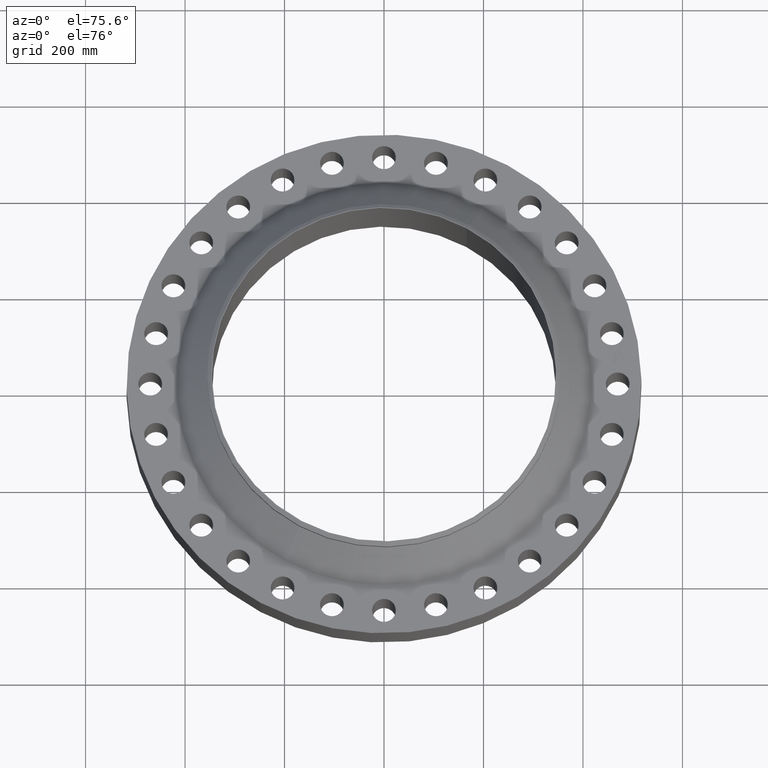
[diagram: clean part render]
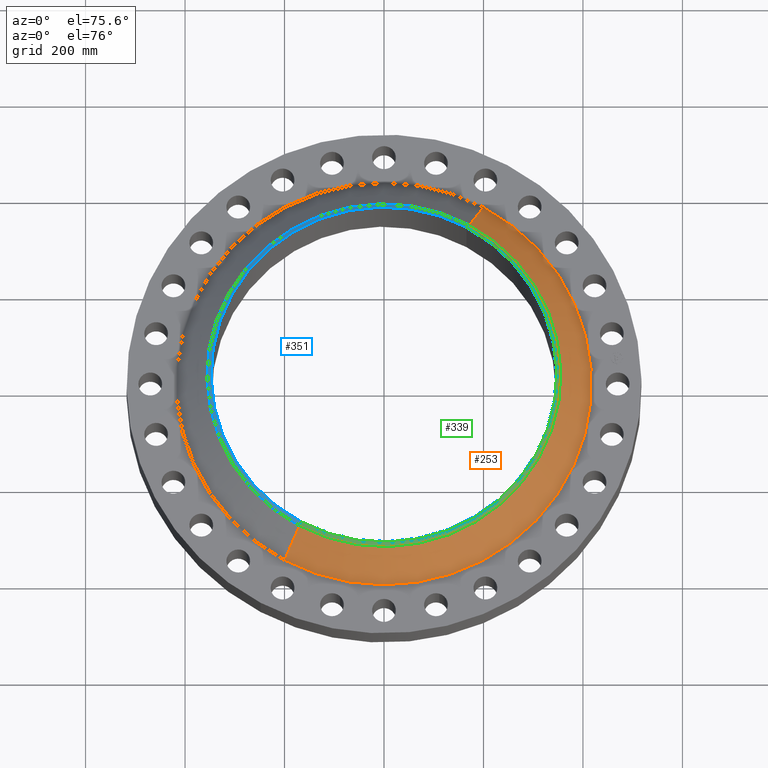
[diagram: same view with three faces highlighted in distinct colors, each labeled with its STEP entity id]
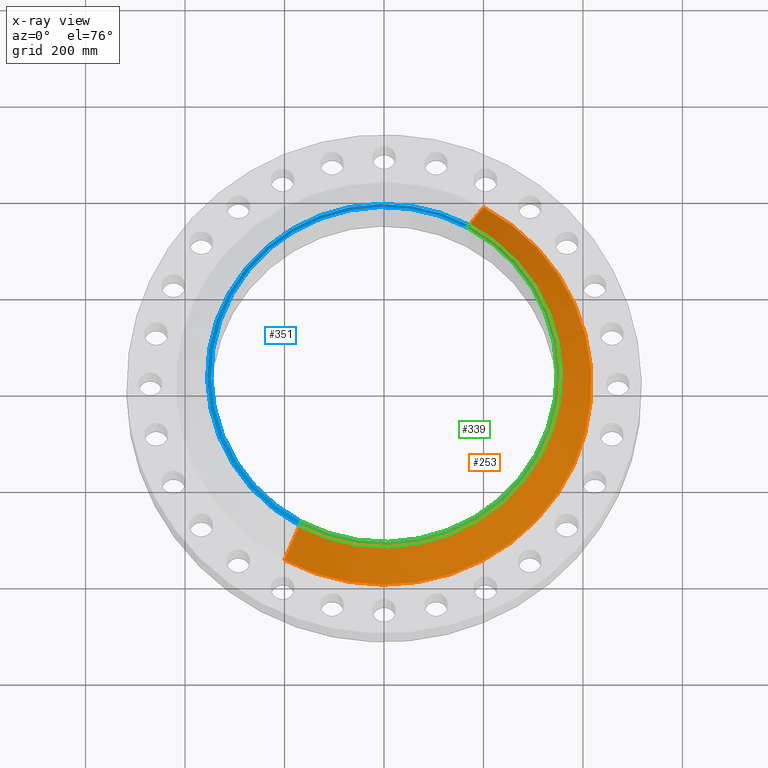
[diagram: x-ray of the same camera — body ghosted, the three highlighted faces saturated]
A machine part, auxiliary view with three faces highlighted in distinct colors.
The next image is the same camera in x-ray (body ghosted, the three faces saturated) — at least one of them is partly hidden behind the body in this view.
Their STEP definitions:

[orange] entity #253 — the highlighted conical surface has half-angle 44.726 deg.
#184=CARTESIAN_POINT('Vertex',(200.033842534,366.159492686,76.5573635073)) ;
#187=CARTESIAN_POINT('Axis2P3D Location',(0.,0.,76.5573635073)) ;
#191=CARTESIAN_POINT('Vertex',(-200.033842534,-366.159492686,76.5573635073)) ;
#223=CARTESIAN_POINT('Axis2P3D Location',(0.,0.,138.785342033)) ;
#228=CARTESIAN_POINT('Line Origine',(185.258782031,339.113925848,107.67135277)) ;
#232=CARTESIAN_POINT('Vertex',(170.483721528,312.068359009,138.785342033)) ;
#235=CARTESIAN_POINT('Axis2P3D Location',(0.,0.,138.785342033)) ;
#239=CARTESIAN_POINT('Vertex',(-170.483721528,-312.068359009,138.785342033)) ;
#242=CARTESIAN_POINT('Line Origine',(-185.258782031,-339.113925848,107.67135277)) ;
#188=DIRECTION('Axis2P3D Direction',(0.,0.,-1.)) ;
#224=DIRECTION('Axis2P3D Direction',(0.,0.,-1.)) ;
#225=DIRECTION('Axis2P3D XDirection',(0.479425538604,0.87758256189,0.)) ;
#229=DIRECTION('Vector Direction',(0.337382434249,0.617574403414,-0.710475157418)) ;
#236=DIRECTION('Axis2P3D Direction',(0.,0.,-1.)) ;
#243=DIRECTION('Vector Direction',(-0.337382434249,-0.617574403414,-0.710475157418)) ;
#189=AXIS2_PLACEMENT_3D('Circle Axis2P3D',#187,#188,$) ;
#226=AXIS2_PLACEMENT_3D('Cone Axis2P3D',#223,#224,#225) ;
#237=AXIS2_PLACEMENT_3D('Circle Axis2P3D',#235,#236,$) ;
#248=ORIENTED_EDGE('',*,*,#193,.F.) ;
#249=ORIENTED_EDGE('',*,*,#234,.T.) ;
#250=ORIENTED_EDGE('',*,*,#241,.T.) ;
#251=ORIENTED_EDGE('',*,*,#246,.F.) ;
#230=VECTOR('Line Direction',#229,1.) ;
#244=VECTOR('Line Direction',#243,1.) ;
#253=ADVANCED_FACE('PartBody',(#252),#227,.T.) ;
#190=CIRCLE('generated circle',#189,417.236518348) ;
#238=CIRCLE('generated circle',#237,355.600000001) ;
#227=CONICAL_SURFACE('Cone',#226,355.600000001,0.780623141506) ;
#193=EDGE_CURVE('',#185,#192,#190,.T.) ;
#234=EDGE_CURVE('',#185,#233,#231,.F.) ;
#241=EDGE_CURVE('',#233,#240,#238,.T.) ;
#246=EDGE_CURVE('',#192,#240,#245,.F.) ;
#247=EDGE_LOOP('',(#248,#249,#250,#251)) ;
#252=FACE_OUTER_BOUND('',#247,.T.) ;
#231=LINE('Line',#228,#230) ;
#245=LINE('Line',#242,#244) ;
#185=VERTEX_POINT('',#184) ;
#192=VERTEX_POINT('',#191) ;
#233=VERTEX_POINT('',#232) ;
#240=VERTEX_POINT('',#239) ;

[blue] entity #351 — the highlighted conical surface has half-angle 52.5 deg.
#275=CARTESIAN_POINT('Vertex',(-170.483721528,-312.068359009,144.785342033)) ;
#282=CARTESIAN_POINT('Vertex',(170.483721528,312.068359009,144.785342033)) ;
#297=CARTESIAN_POINT('Axis2P3D Location',(0.,0.,144.785342033)) ;
#309=CARTESIAN_POINT('Axis2P3D Location',(0.,0.,150.876000001)) ;
#314=CARTESIAN_POINT('Line Origine',(170.716513757,312.494482325,144.412754958)) ;
#318=CARTESIAN_POINT('Vertex',(166.678281316,305.102547424,150.876000001)) ;
#325=CARTESIAN_POINT('Vertex',(-166.678281316,-305.102547424,150.876000001)) ;
#328=CARTESIAN_POINT('Line Origine',(-170.716513757,-312.494482325,144.412754958)) ;
#340=CARTESIAN_POINT('Axis2P3D Location',(0.,0.,150.876000001)) ;
#298=DIRECTION('Axis2P3D Direction',(0.,0.,-1.)) ;
#310=DIRECTION('Axis2P3D Direction',(-0.,-0.,-1.)) ;
#311=DIRECTION('Axis2P3D XDirection',(0.479425538604,0.87758256189,0.)) ;
#315=DIRECTION('Vector Direction',(0.380353852473,0.696233056857,-0.608761429009)) ;
#329=DIRECTION('Vector Direction',(-0.380353852473,-0.696233056857,-0.608761429009)) ;
#341=DIRECTION('Axis2P3D Direction',(0.,-0.,-1.)) ;
#299=AXIS2_PLACEMENT_3D('Circle Axis2P3D',#297,#298,$) ;
#312=AXIS2_PLACEMENT_3D('Cone Axis2P3D',#309,#310,#311) ;
#342=AXIS2_PLACEMENT_3D('Circle Axis2P3D',#340,#341,$) ;
#346=ORIENTED_EDGE('',*,*,#332,.F.) ;
#347=ORIENTED_EDGE('',*,*,#344,.T.) ;
#348=ORIENTED_EDGE('',*,*,#320,.T.) ;
#349=ORIENTED_EDGE('',*,*,#301,.F.) ;
#316=VECTOR('Line Direction',#315,1.) ;
#330=VECTOR('Line Direction',#329,1.) ;
#351=ADVANCED_FACE('PartBody',(#350),#313,.T.) ;
#300=CIRCLE('generated circle',#299,355.600000001) ;
#343=CIRCLE('generated circle',#342,347.662500001) ;
#313=CONICAL_SURFACE('Cone',#312,347.662500001,0.916297857297) ;
#301=EDGE_CURVE('',#276,#283,#300,.T.) ;
#320=EDGE_CURVE('',#319,#283,#317,.T.) ;
#332=EDGE_CURVE('',#326,#276,#331,.T.) ;
#344=EDGE_CURVE('',#326,#319,#343,.T.) ;
#345=EDGE_LOOP('',(#346,#347,#348,#349)) ;
#350=FACE_OUTER_BOUND('',#345,.T.) ;
#317=LINE('Line',#314,#316) ;
#331=LINE('Line',#328,#330) ;
#276=VERTEX_POINT('',#275) ;
#283=VERTEX_POINT('',#282) ;
#319=VERTEX_POINT('',#318) ;
#326=VERTEX_POINT('',#325) ;

[green] entity #339 — the highlighted conical surface has half-angle 52.5 deg.
#275=CARTESIAN_POINT('Vertex',(-170.483721528,-312.068359009,144.785342033)) ;
#282=CARTESIAN_POINT('Vertex',(170.483721528,312.068359009,144.785342033)) ;
#285=CARTESIAN_POINT('Axis2P3D Location',(0.,0.,144.785342033)) ;
#309=CARTESIAN_POINT('Axis2P3D Location',(0.,0.,150.876000001)) ;
#314=CARTESIAN_POINT('Line Origine',(170.716513757,312.494482325,144.412754958)) ;
#318=CARTESIAN_POINT('Vertex',(166.678281316,305.102547424,150.876000001)) ;
#321=CARTESIAN_POINT('Axis2P3D Location',(0.,0.,150.876000001)) ;
#325=CARTESIAN_POINT('Vertex',(-166.678281316,-305.102547424,150.876000001)) ;
#328=CARTESIAN_POINT('Line Origine',(-170.716513757,-312.494482325,144.412754958)) ;
#286=DIRECTION('Axis2P3D Direction',(0.,0.,-1.)) ;
#310=DIRECTION('Axis2P3D Direction',(-0.,-0.,-1.)) ;
#311=DIRECTION('Axis2P3D XDirection',(0.479425538604,0.87758256189,0.)) ;
#315=DIRECTION('Vector Direction',(0.380353852473,0.696233056857,-0.608761429009)) ;
#322=DIRECTION('Axis2P3D Direction',(0.,-0.,-1.)) ;
#329=DIRECTION('Vector Direction',(-0.380353852473,-0.696233056857,-0.608761429009)) ;
#287=AXIS2_PLACEMENT_3D('Circle Axis2P3D',#285,#286,$) ;
#312=AXIS2_PLACEMENT_3D('Cone Axis2P3D',#309,#310,#311) ;
#323=AXIS2_PLACEMENT_3D('Circle Axis2P3D',#321,#322,$) ;
#334=ORIENTED_EDGE('',*,*,#320,.F.) ;
#335=ORIENTED_EDGE('',*,*,#327,.T.) ;
#336=ORIENTED_EDGE('',*,*,#332,.T.) ;
#337=ORIENTED_EDGE('',*,*,#289,.F.) ;
#316=VECTOR('Line Direction',#315,1.) ;
#330=VECTOR('Line Direction',#329,1.) ;
#339=ADVANCED_FACE('PartBody',(#338),#313,.T.) ;
#288=CIRCLE('generated circle',#287,355.600000001) ;
#324=CIRCLE('generated circle',#323,347.662500001) ;
#313=CONICAL_SURFACE('Cone',#312,347.662500001,0.916297857297) ;
#289=EDGE_CURVE('',#283,#276,#288,.T.) ;
#320=EDGE_CURVE('',#319,#283,#317,.T.) ;
#327=EDGE_CURVE('',#319,#326,#324,.T.) ;
#332=EDGE_CURVE('',#326,#276,#331,.T.) ;
#333=EDGE_LOOP('',(#334,#335,#336,#337)) ;
#338=FACE_OUTER_BOUND('',#333,.T.) ;
#317=LINE('Line',#314,#316) ;
#331=LINE('Line',#328,#330) ;
#276=VERTEX_POINT('',#275) ;
#283=VERTEX_POINT('',#282) ;
#319=VERTEX_POINT('',#318) ;
#326=VERTEX_POINT('',#325) ;